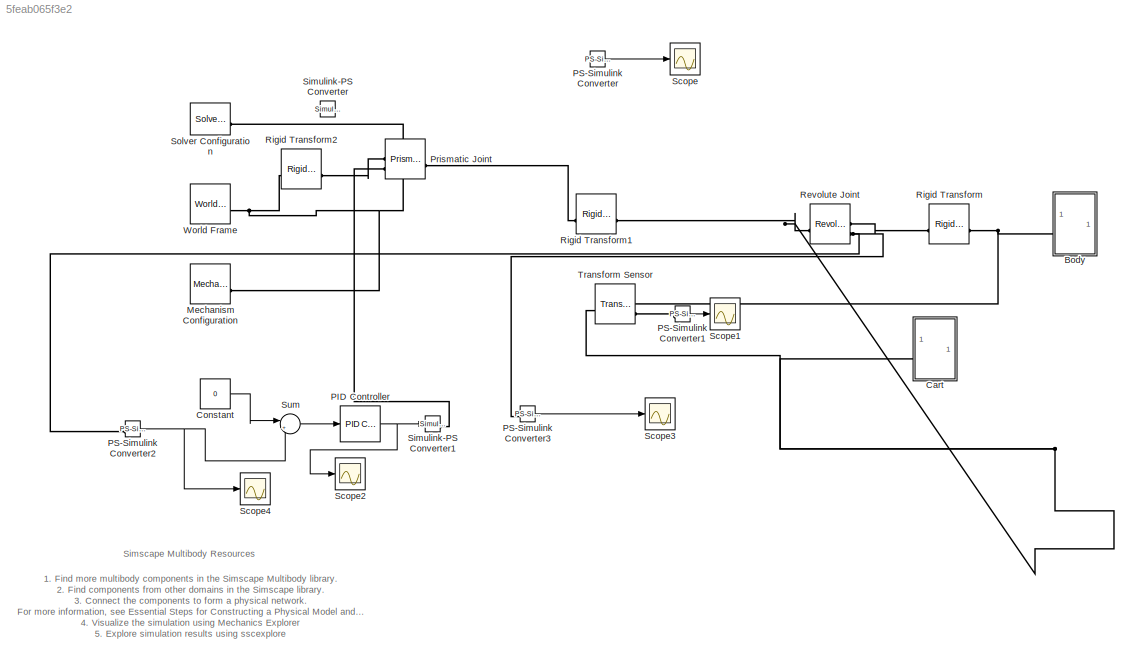
MODEL slx_5feab065f3e2
KIND model
CONFIG AbsTol = 1e-3
CONFIG EnableMultiTasking = on
CONFIG FixedStep = auto
CONFIG MaxStep = auto
CONFIG MinStep = auto
CONFIG RelTol = 1e-3
CONFIG SampleTimeConstraint = Unconstrained
CONFIG SolverName = VariableStepAuto
CONFIG StartTime = 0.0
CONFIG StopTime = 10.0
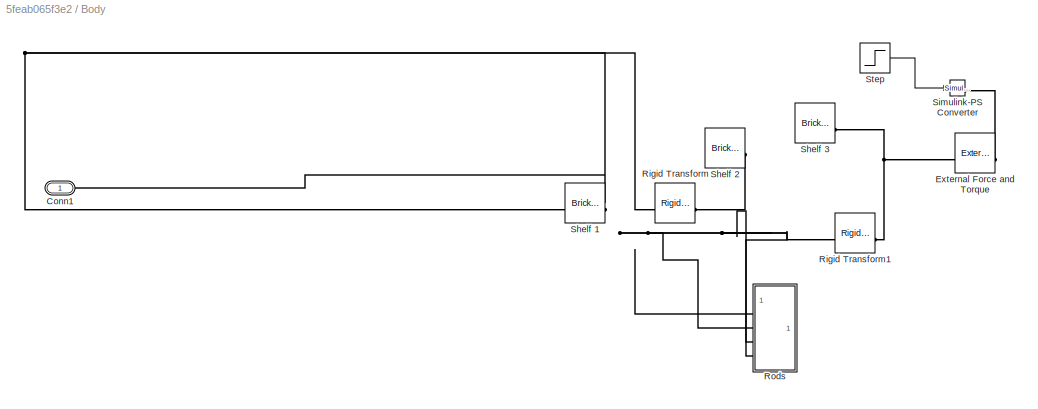
BLOCK [SubSystem] Body
BLOCK [PMIOPort] Body/Conn1
  Side = Left
BLOCK [Reference] Body/External Force and Torque  REF=sm_lib/Forces and
Torques/External Force
and Torque
  NameLocation = top
  SourceBlock = sm_lib/Forces and\nTorques/External Force\nand Torque
  SourceType = External Force\nand Torque
BLOCK [Reference] Body/Rigid Transform  REF=sm_lib/Frames and
Transforms/Rigid
Transform
  SourceBlock = sm_lib/Frames and\nTransforms/Rigid\nTransform
  SourceType = Rigid\nTransform
BLOCK [Reference] Body/Rigid Transform1  REF=sm_lib/Frames and
Transforms/Rigid
Transform
  SourceBlock = sm_lib/Frames and\nTransforms/Rigid\nTransform
  SourceType = Rigid\nTransform
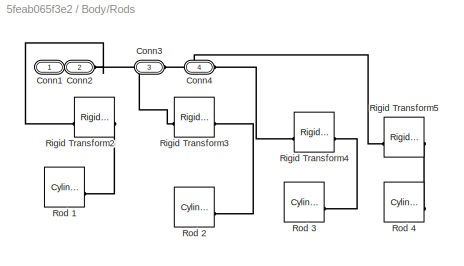
BLOCK [SubSystem] Body/Rods
BLOCK [PMIOPort] Body/Rods/Conn1
  Side = Left
BLOCK [PMIOPort] Body/Rods/Conn2
  Port = 2
  Side = Left
BLOCK [PMIOPort] Body/Rods/Conn3
  Port = 3
  Side = Left
BLOCK [PMIOPort] Body/Rods/Conn4
  Port = 4
  Side = Left
BLOCK [Reference] Body/Rods/Rigid Transform2  REF=sm_lib/Frames and
Transforms/Rigid
Transform
  SourceBlock = sm_lib/Frames and\nTransforms/Rigid\nTransform
  SourceType = Rigid\nTransform
BLOCK [Reference] Body/Rods/Rigid Transform3  REF=sm_lib/Frames and
Transforms/Rigid
Transform
  SourceBlock = sm_lib/Frames and\nTransforms/Rigid\nTransform
  SourceType = Rigid\nTransform
BLOCK [Reference] Body/Rods/Rigid Transform4  REF=sm_lib/Frames and
Transforms/Rigid
Transform
  SourceBlock = sm_lib/Frames and\nTransforms/Rigid\nTransform
  SourceType = Rigid\nTransform
BLOCK [Reference] Body/Rods/Rigid Transform5  REF=sm_lib/Frames and
Transforms/Rigid
Transform
  SourceBlock = sm_lib/Frames and\nTransforms/Rigid\nTransform
  SourceType = Rigid\nTransform
BLOCK [Reference] Body/Rods/Rod 1  REF=sm_lib/Body Elements/Cylindrical Solid
  SourceBlock = sm_lib/Body Elements/Cylindrical Solid
  SourceType = Cylindrical Solid
BLOCK [Reference] Body/Rods/Rod 2  REF=sm_lib/Body Elements/Cylindrical Solid
  SourceBlock = sm_lib/Body Elements/Cylindrical Solid
  SourceType = Cylindrical Solid
BLOCK [Reference] Body/Rods/Rod 3  REF=sm_lib/Body Elements/Cylindrical Solid
  SourceBlock = sm_lib/Body Elements/Cylindrical Solid
  SourceType = Cylindrical Solid
BLOCK [Reference] Body/Rods/Rod 4  REF=sm_lib/Body Elements/Cylindrical Solid
  SourceBlock = sm_lib/Body Elements/Cylindrical Solid
  SourceType = Cylindrical Solid
BLOCK [Reference] Body/Shelf 1  REF=sm_lib/Body Elements/Brick Solid
  SourceBlock = sm_lib/Body Elements/Brick Solid
  SourceType = Brick Solid
BLOCK [Reference] Body/Shelf 2  REF=sm_lib/Body Elements/Brick Solid
  SourceBlock = sm_lib/Body Elements/Brick Solid
  SourceType = Brick Solid
BLOCK [Reference] Body/Shelf 3  REF=sm_lib/Body Elements/Brick Solid
  SourceBlock = sm_lib/Body Elements/Brick Solid
  SourceType = Brick Solid
BLOCK [Reference] Body/Simulink-PS Converter  REF=nesl_utility/Simulink-PS
Converter
  SourceBlock = nesl_utility/Simulink-PS\nConverter
  SourceType = Simulink-PS\nConverter
BLOCK [Step] Body/Step
  After = 0
  Before = 1
  SampleTime = 0
  Time = 0.5
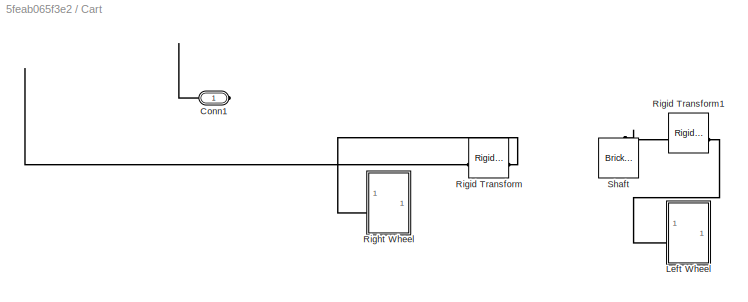
BLOCK [SubSystem] Cart
BLOCK [PMIOPort] Cart/Conn1
  Side = Left
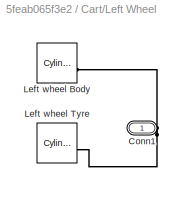
BLOCK [SubSystem] Cart/Left Wheel
BLOCK [PMIOPort] Cart/Left Wheel/Conn1
  Side = Left
BLOCK [Reference] Cart/Left Wheel/Left wheel Body  REF=sm_lib/Body Elements/Cylindrical Solid
  SourceBlock = sm_lib/Body Elements/Cylindrical Solid
  SourceType = Cylindrical Solid
BLOCK [Reference] Cart/Left Wheel/Left wheel Tyre  REF=sm_lib/Body Elements/Cylindrical Solid
  SourceBlock = sm_lib/Body Elements/Cylindrical Solid
  SourceType = Cylindrical Solid
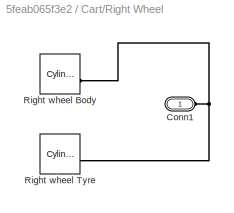
BLOCK [SubSystem] Cart/Right Wheel
BLOCK [PMIOPort] Cart/Right Wheel/Conn1
  Side = Left
BLOCK [Reference] Cart/Right Wheel/Right wheel Body  REF=sm_lib/Body Elements/Cylindrical Solid
  SourceBlock = sm_lib/Body Elements/Cylindrical Solid
  SourceType = Cylindrical Solid
BLOCK [Reference] Cart/Right Wheel/Right wheel Tyre  REF=sm_lib/Body Elements/Cylindrical Solid
  SourceBlock = sm_lib/Body Elements/Cylindrical Solid
  SourceType = Cylindrical Solid
BLOCK [Reference] Cart/Rigid Transform  REF=sm_lib/Frames and
Transforms/Rigid
Transform
  SourceBlock = sm_lib/Frames and\nTransforms/Rigid\nTransform
  SourceType = Rigid\nTransform
BLOCK [Reference] Cart/Rigid Transform1  REF=sm_lib/Frames and
Transforms/Rigid
Transform
  SourceBlock = sm_lib/Frames and\nTransforms/Rigid\nTransform
  SourceType = Rigid\nTransform
BLOCK [Reference] Cart/Shaft  REF=sm_lib/Body Elements/Brick Solid
  SourceBlock = sm_lib/Body Elements/Brick Solid
  SourceType = Brick Solid
BLOCK [Constant] Constant
  Value = 0
BLOCK [Reference] Mechanism Configuration  REF=sm_lib/Utilities/Mechanism
Configuration
  SourceBlock = sm_lib/Utilities/Mechanism\nConfiguration
  SourceType = Mechanism\nConfiguration
BLOCK [Reference] PID Controller  REF=slpidlib/PID Controller
  LibrarySourceBlock = simulink/Continuous/PID Controller
  SourceBlock = slpidlib/PID Controller
  SourceType = PID 1dof
BLOCK [Reference] PS-Simulink Converter  REF=nesl_utility/PS-Simulink
Converter
  SourceBlock = nesl_utility/PS-Simulink\nConverter
  SourceType = PS-Simulink\nConverter
BLOCK [Reference] PS-Simulink Converter1  REF=nesl_utility/PS-Simulink
Converter
  SourceBlock = nesl_utility/PS-Simulink\nConverter
  SourceType = PS-Simulink\nConverter
BLOCK [Reference] PS-Simulink Converter2  REF=nesl_utility/PS-Simulink
Converter
  SourceBlock = nesl_utility/PS-Simulink\nConverter
  SourceType = PS-Simulink\nConverter
BLOCK [Reference] PS-Simulink Converter3  REF=nesl_utility/PS-Simulink
Converter
  SourceBlock = nesl_utility/PS-Simulink\nConverter
  SourceType = PS-Simulink\nConverter
BLOCK [Reference] Prismatic Joint  REF=sm_lib/Joints/Prismatic
Joint
  SourceBlock = sm_lib/Joints/Prismatic\nJoint
  SourceType = Prismatic\nJoint
BLOCK [Reference] Revolute Joint  REF=sm_lib/Joints/Revolute Joint
  SourceBlock = sm_lib/Joints/Revolute Joint
  SourceType = Revolute Joint
BLOCK [Reference] Rigid Transform  REF=sm_lib/Frames and
Transforms/Rigid
Transform
  SourceBlock = sm_lib/Frames and\nTransforms/Rigid\nTransform
  SourceType = Rigid\nTransform
BLOCK [Reference] Rigid Transform1  REF=sm_lib/Frames and
Transforms/Rigid
Transform
  SourceBlock = sm_lib/Frames and\nTransforms/Rigid\nTransform
  SourceType = Rigid\nTransform
BLOCK [Reference] Rigid Transform2  REF=sm_lib/Frames and
Transforms/Rigid
Transform
  SourceBlock = sm_lib/Frames and\nTransforms/Rigid\nTransform
  SourceType = Rigid\nTransform
BLOCK [Scope] Scope
  Floating = off
  NumInputPorts = 1
  ScopeSpecificationString = Simulink.scopes.TimeScopeBlockCfg('CurrentConfiguration', extmgr.ConfigurationSet(extmgr.Configuration('Core','General UI',true),extmgr.Configuration('Core','Source UI',true),extmgr.Configuration('Sources','WiredSimulink',true),extmgr.Configuration('Visuals','Time Domain',true),extmgr.Configuration('Tools','Plot Navigation',true),extmgr.Configuration('Tools','Measurements',true,'Version','2019b'))...<+19ch>
BLOCK [Scope] Scope1
  Floating = off
  NumInputPorts = 1
  ScopeSpecificationString = Simulink.scopes.TimeScopeBlockCfg('CurrentConfiguration', extmgr.ConfigurationSet(extmgr.Configuration('Core','General UI',true),extmgr.Configuration('Core','Source UI',true),extmgr.Configuration('Sources','WiredSimulink',true,'DataLoggingVariableName','ScopeData1'),extmgr.Configuration('Visuals','Time Domain',true,'SerializedDisplays',{struct('MinYLimReal','1.37445','MaxYLimReal','3.33794','YLabe...<+1468ch>
BLOCK [Scope] Scope2
  Floating = off
  NumInputPorts = 1
  ScopeSpecificationString = Simulink.scopes.TimeScopeBlockCfg('CurrentConfiguration', extmgr.ConfigurationSet(extmgr.Configuration('Core','General UI',true),extmgr.Configuration('Core','Source UI',true),extmgr.Configuration('Sources','WiredSimulink',true,'DataLoggingVariableName','ScopeData2'),extmgr.Configuration('Visuals','Time Domain',true,'SerializedDisplays',{struct('MinYLimReal','-1.82722','MaxYLimReal','0.41407','YLab...<+1462ch>
BLOCK [Scope] Scope3
  Floating = off
  NumInputPorts = 1
  ScopeSpecificationString = Simulink.scopes.TimeScopeBlockCfg('CurrentConfiguration', extmgr.ConfigurationSet(extmgr.Configuration('Core','General UI',true),extmgr.Configuration('Core','Source UI',true),extmgr.Configuration('Sources','WiredSimulink',true,'DataLoggingVariableName','ScopeData3'),extmgr.Configuration('Visuals','Time Domain',true,'SerializedDisplays',{struct('MinYLimReal','-0.4571','MaxYLimReal','4.11394','YLabe...<+1468ch>
BLOCK [Scope] Scope4
  Floating = off
  NumInputPorts = 1
  ScopeSpecificationString = Simulink.scopes.TimeScopeBlockCfg('CurrentConfiguration', extmgr.ConfigurationSet(extmgr.Configuration('Core','General UI',true),extmgr.Configuration('Core','Source UI',true),extmgr.Configuration('Sources','WiredSimulink',true,'DataLoggingVariableName','ScopeData4'),extmgr.Configuration('Visuals','Time Domain',true,'SerializedDisplays',{struct('MinYLimReal','-0.00579','MaxYLimReal','0.00588','YLab...<+1470ch>
BLOCK [Reference] Simulink-PS Converter  REF=nesl_utility/Simulink-PS
Converter
  SourceBlock = nesl_utility/Simulink-PS\nConverter
  SourceType = Simulink-PS\nConverter
BLOCK [Reference] Simulink-PS Converter1  REF=nesl_utility/Simulink-PS
Converter
  SourceBlock = nesl_utility/Simulink-PS\nConverter
  SourceType = Simulink-PS\nConverter
BLOCK [Reference] Solver Configuration  REF=nesl_utility/Solver
Configuration
  NameLocation = right
  SourceBlock = nesl_utility/Solver\nConfiguration
  SourceType = Solver\nConfiguration
BLOCK [Sum] Sum
  Inputs = |+-
BLOCK [Reference] Transform Sensor  REF=sm_lib/Frames and
Transforms/Transform
Sensor
  SourceBlock = sm_lib/Frames and\nTransforms/Transform\nSensor
  SourceType = Transform\nSensor
BLOCK [Reference] World Frame  REF=sm_lib/Frames and
Transforms/World Frame
  SourceBlock = sm_lib/Frames and\nTransforms/World Frame
  SourceType = World Frame
ANNOTATION (root): 1. Find more multibody components in the Simscape Multibody library . 2. Find components from other domains in the Simscape library . 3. Connect the components to form a physical network. For more information, see Essential Steps for Constructing a Physical Model and Creating a Multibody Model . 4. Visualize the simulation using Mechanics Explorer 5. Explore simulation results using sscexplore
ANNOTATION (root): Simscape Multibody Resources
LINE Body/Step:1 -> Body/Simulink-PS Converter:1
LINE Constant:1 -> Sum:1
NET PID Controller:1 -> Scope2:1, Simulink-PS Converter1:1
LINE PS-Simulink Converter1:1 -> Scope1:1
NET PS-Simulink Converter2:1 -> Scope4:1, Sum:2
LINE PS-Simulink Converter3:1 -> Scope3:1
LINE PS-Simulink Converter:1 -> Scope:1
LINE Sum:1 -> PID Controller:1
PNET net1: Body/Conn1:RConn1 -- Body/Rigid Transform1:LConn1 -- Body/Rigid Transform:LConn1 -- Body/Rods:LConn1 -- Body/Rods:LConn2 -- Body/Rods:LConn3 -- Body/Rods:LConn4 -- Body/Shelf 1:RConn1
PLINE Body/External Force and Torque:LConn1 -- Body/Simulink-PS Converter:RConn1
PNET net2: Body/External Force and Torque:RConn1 -- Body/Rigid Transform1:RConn1 -- Body/Shelf 3:RConn1
PLINE Body/Rigid Transform:RConn1 -- Body/Shelf 2:RConn1
PLINE Body/Rods/Conn1:RConn1 -- Body/Rods/Rigid Transform2:LConn1
PLINE Body/Rods/Conn2:RConn1 -- Body/Rods/Rigid Transform3:LConn1
PLINE Body/Rods/Conn3:RConn1 -- Body/Rods/Rigid Transform5:LConn1
PLINE Body/Rods/Conn4:RConn1 -- Body/Rods/Rigid Transform4:LConn1
PLINE Body/Rods/Rigid Transform2:RConn1 -- Body/Rods/Rod 1:RConn1
PLINE Body/Rods/Rigid Transform3:RConn1 -- Body/Rods/Rod 2:RConn1
PLINE Body/Rods/Rigid Transform4:RConn1 -- Body/Rods/Rod 3:RConn1
PLINE Body/Rods/Rigid Transform5:RConn1 -- Body/Rods/Rod 4:RConn1
PNET net3: Body:LConn1 -- Rigid Transform:RConn1 -- Transform Sensor:RConn1
PNET net4: Cart/Conn1:RConn1 -- Cart/Rigid Transform1:LConn1 -- Cart/Rigid Transform:LConn1 -- Cart/Shaft:RConn1
PNET net5: Cart/Left Wheel/Conn1:RConn1 -- Cart/Left Wheel/Left wheel Body:RConn1 -- Cart/Left Wheel/Left wheel Tyre:RConn1
PLINE Cart/Left Wheel:LConn1 -- Cart/Rigid Transform1:RConn1
PNET net6: Cart/Right Wheel/Conn1:RConn1 -- Cart/Right Wheel/Right wheel Body:RConn1 -- Cart/Right Wheel/Right wheel Tyre:RConn1
PLINE Cart/Right Wheel:LConn1 -- Cart/Rigid Transform:RConn1
PNET net7: Cart:LConn1 -- Revolute Joint:LConn1 -- Rigid Transform1:RConn1 -- Transform Sensor:LConn1
PNET net8: Mechanism Configuration:RConn1 -- Rigid Transform2:LConn1 -- Solver Configuration:RConn1 -- World Frame:RConn1
PLINE PS-Simulink Converter1:LConn1 -- Transform Sensor:RConn2
PNET net9: PS-Simulink Converter2:LConn1 -- PS-Simulink Converter3:LConn1 -- Revolute Joint:RConn2
PLINE Prismatic Joint:LConn1 -- Rigid Transform2:RConn1
PLINE Prismatic Joint:LConn2 -- Simulink-PS Converter1:RConn1
PLINE Prismatic Joint:RConn1 -- Rigid Transform1:LConn1
PLINE Revolute Joint:RConn1 -- Rigid Transform:LConn1
note: NET lines group one-source signal fan-out (src -> all destinations, sorted); 1:1 wires keep LINE; PNET lines group multi-terminal physical nets as a canonical sorted terminal list (undirected conserving connections); 2-terminal nets keep the pairwise PLINE form
